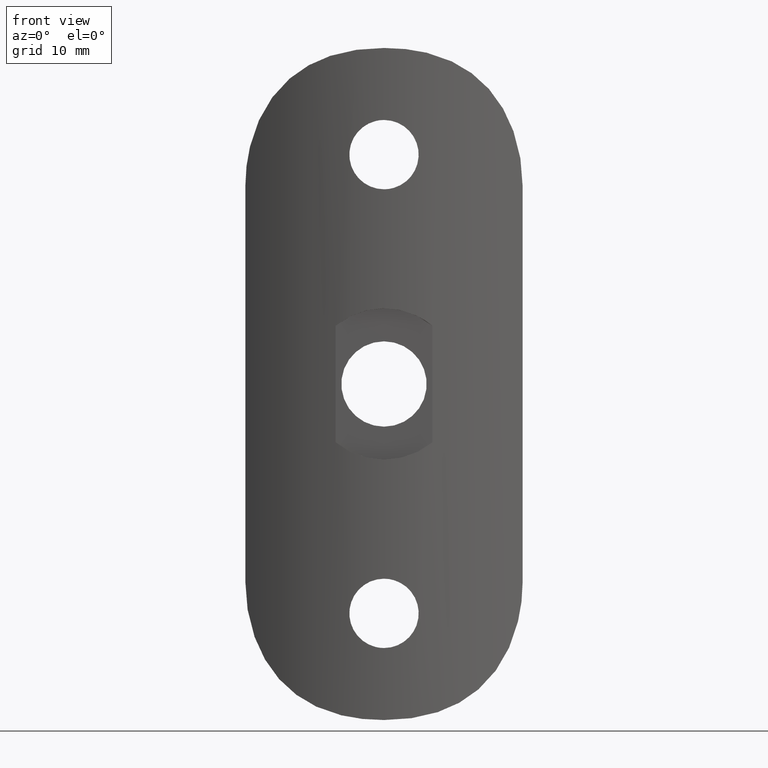
[diagram: clean part render]
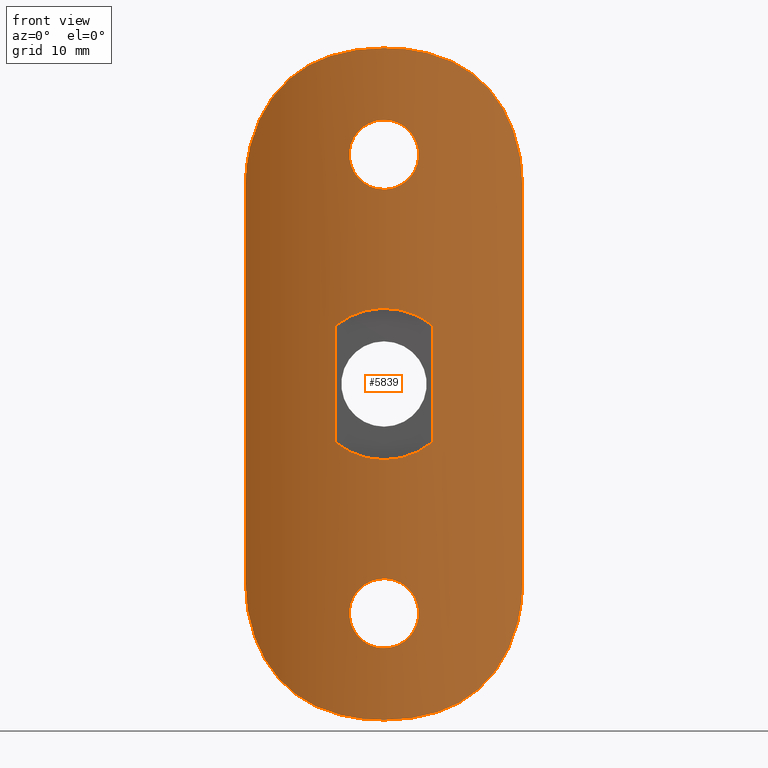
[diagram: same view with one face highlighted and labeled with its STEP entity id]
A machine part, front view. The second image highlights one B-rep face of the part: STEP entity #5839.
In plain terms, the highlighted cylindrical surface (partial cylindrical patch) has radius 20.85 mm, axis along (-0, -0, -1).
Its self-contained STEP definition (entity closure, byte-faithful):
#5 = CARTESIAN_POINT ( 'NONE',  ( 0.8994894225556422400, -4.000000000000002700, -31.49999999999999300 ) ) ;
#105 = CARTESIAN_POINT ( 'NONE',  ( -4.385795527101139500, -3.538186985999252100, 30.96376055406732400 ) ) ;
#164 = CARTESIAN_POINT ( 'NONE',  ( -12.92800348958243200, 0.4908389687051674700, -20.28524322672850400 ) ) ;
#182 = DIRECTION ( 'NONE',  ( -0.0000000000000000000, -0.0000000000000000000, -1.000000000000000000 ) ) ;
#185 = CARTESIAN_POINT ( 'NONE',  ( -3.229192406513820700, -3.748460063484965400, -21.92399563171616000 ) ) ;
#217 = CARTESIAN_POINT ( 'NONE',  ( -8.233914946018360900, -2.308684805869031000, 29.13305792003740900 ) ) ;
#234 = CARTESIAN_POINT ( 'NONE',  ( -2.449119810150480100, -3.856205077523528100, -23.64687108957696900 ) ) ;
#384 = CARTESIAN_POINT ( 'NONE',  ( 0.8995211615377171100, -4.000000000000000000, 31.49999999999999300 ) ) ;
#387 = CARTESIAN_POINT ( 'NONE',  ( -0.8435205793629856300, -3.983990058228274600, -18.35407508419675400 ) ) ;
#417 = CARTESIAN_POINT ( 'NONE',  ( 2.810857946267505200, -3.813365171792722800, -6.532992151309613000 ) ) ;
#429 = CARTESIAN_POINT ( 'NONE',  ( 2.448240329348332800, -3.856310303687668500, 23.64788784674723800 ) ) ;
#435 = VERTEX_POINT ( 'NONE', #8460 ) ;
#485 = CARTESIAN_POINT ( 'NONE',  ( -0.4233875294903806100, -3.996760221051988800, 18.27058619196105800 ) ) ;
#512 = CARTESIAN_POINT ( 'NONE',  ( 3.084215943911794000, -3.770788221992580800, -20.45331265347945000 ) ) ;
#515 = EDGE_CURVE ( 'NONE', #2177, #14832, #12810, .T. ) ;
#544 = CARTESIAN_POINT ( 'NONE',  ( 11.84133742178742400, -0.3148745535422774500, 24.52201016392537600 ) ) ;
#546 = CARTESIAN_POINT ( 'NONE',  ( -2.821682081450909200, -3.808527132807963100, 23.12657407540844500 ) ) ;
#566 = CARTESIAN_POINT ( 'NONE',  ( 2.148963806582265600, -3.889506302244738500, -23.94729595072838900 ) ) ;
#596 = CARTESIAN_POINT ( 'NONE',  ( -2.146754771307998000, -3.889736771875800200, 19.05075325140589000 ) ) ;
#616 = CARTESIAN_POINT ( 'NONE',  ( 4.538722287164086200, -3.500000000000000000, -5.459853477887480500 ) ) ;
#802 = CARTESIAN_POINT ( 'NONE',  ( -1.630940969460388900, -3.937077785470604100, -6.913221009446353100 ) ) ;
#818 = CARTESIAN_POINT ( 'NONE',  ( 2.028323730318318100, -3.902072609321373800, 6.807241558953992700 ) ) ;
#849 = B_SPLINE_CURVE_WITH_KNOTS ( 'NONE', 3,
 ( #15299, #6578, #5247, #10174, #417, #11436, #15201, #3007, #6684, #11547, #1550, #4242 ),
 .UNSPECIFIED., .F., .F.,
 ( 4, 2, 2, 2, 2, 4 ),
 ( 0.0000000000000000000, 0.001233224127721128200, 0.002466448255442256300, 0.003699672383163384500, 0.004316284447023948300, 0.004932896510884512600 ),
 .UNSPECIFIED. ) ;
#933 = CARTESIAN_POINT ( 'NONE',  ( 0.8219664710794234400, -3.987728141361922300, 7.064196573403583200 ) ) ;
#1048 = CARTESIAN_POINT ( 'NONE',  ( 10.81994887173728900, -0.9746651396309005100, -26.38466664456145600 ) ) ;
#1058 = CARTESIAN_POINT ( 'NONE',  ( 12.92797526336123500, 0.4908244495508125600, -20.28429128531304600 ) ) ;
#1089 = CARTESIAN_POINT ( 'NONE',  ( 4.808879816216538000, -3.442244404435218300, -30.84088086085275300 ) ) ;
#1151 = EDGE_LOOP ( 'NONE', ( #15118, #13484, #2273, #15258, #11315, #2850 ) ) ;
#1190 = CARTESIAN_POINT ( 'NONE',  ( -11.84133742178742700, -0.3148745535422760600, -24.52201016392537600 ) ) ;
#1353 = CARTESIAN_POINT ( 'NONE',  ( -9.204107398954676000, -1.861343022048288900, -28.32044484061892200 ) ) ;
#1402 = CARTESIAN_POINT ( 'NONE',  ( -13.00000000000000400, 0.5490030979697462200, -18.50000000000000400 ) ) ;
#1422 = CARTESIAN_POINT ( 'NONE',  ( -2.821682081450902900, -3.808527132807960000, -23.12657407540845300 ) ) ;
#1451 = CARTESIAN_POINT ( 'NONE',  ( -12.40799003955487700, 0.09343085567044492900, 22.86586192898707600 ) ) ;
#1466 = CARTESIAN_POINT ( 'NONE',  ( -1.986851713944304300, -3.905884541441842800, -24.08083014807419900 ) ) ;
#1493 = CARTESIAN_POINT ( 'NONE',  ( 4.538722287164086200, -3.499999999999999600, 31.50000000000000000 ) ) ;
#1550 = CARTESIAN_POINT ( 'NONE',  ( 0.2075825184928276100, -4.000000000000000000, -7.100000000000003200 ) ) ;
#1558 = CARTESIAN_POINT ( 'NONE',  ( -7.063075658817594100E-015, -4.000000000000000000, 31.50000000000000000 ) ) ;
#1573 = CARTESIAN_POINT ( 'NONE',  ( -0.4233875294903793300, -3.996760221051987900, -18.27058619196106200 ) ) ;
#1605 = EDGE_CURVE ( 'NONE', #15633, #10254, #14683, .T. ) ;
#1616 = CARTESIAN_POINT ( 'NONE',  ( 3.084215943911796200, -3.770788221992579900, 20.45331265347945000 ) ) ;
#1623 = CARTESIAN_POINT ( 'NONE',  ( 10.81989783616873200, -0.9746932854559102700, 26.38472191610670900 ) ) ;
#1624 = CARTESIAN_POINT ( 'NONE',  ( -1.052663593333552000, -3.974329779009402300, 24.58207343110227300 ) ) ;
#1667 = CARTESIAN_POINT ( 'NONE',  ( 3.145678452917227000, -3.761380209386669300, 22.34438909834230500 ) ) ;
#1679 = CARTESIAN_POINT ( 'NONE',  ( -1.983345368258381700, -3.906216068258572700, 18.91653155011069000 ) ) ;
#1750 = CARTESIAN_POINT ( 'NONE',  ( 2.448240329348330100, -3.856310303687669800, -23.64788784674724200 ) ) ;
#1781 = CARTESIAN_POINT ( 'NONE',  ( 8.240228733257881200, -2.305941394386744800, 29.12830322085717700 ) ) ;
#1783 = CARTESIAN_POINT ( 'NONE',  ( -3.249862481740943800, -3.745166759921350100, 21.28316636938445300 ) ) ;
#2169 = CARTESIAN_POINT ( 'NONE',  ( 2.226842109273686100, -3.881655761852518700, 6.744883439174472500 ) ) ;
#2177 = VERTEX_POINT ( 'NONE', #14851 ) ;
#2207 = CARTESIAN_POINT ( 'NONE',  ( 2.449569028166926500, -3.856166097471422000, -19.35338486506630700 ) ) ;
#2273 = ORIENTED_EDGE ( 'NONE', *, *, #6615, .T. ) ;
#2276 = CARTESIAN_POINT ( 'NONE',  ( 0.4124163941533269300, -4.000050753280903300, 7.100149043094025300 ) ) ;
#2315 = FACE_BOUND ( 'NONE', #2922, .T. ) ;
#2325 = CARTESIAN_POINT ( 'NONE',  ( 7.884269990551416600, -2.455700170826964300, -29.38083181686783600 ) ) ;
#2415 = CARTESIAN_POINT ( 'NONE',  ( -9.787760135149502700, -1.562759223892152800, -27.72325182864246800 ) ) ;
#2427 = EDGE_CURVE ( 'NONE', #14040, #4746, #6798, .T. ) ;
#2538 = CARTESIAN_POINT ( 'NONE',  ( -3.527997405714749400, -3.703992616044535800, -31.16886343233148100 ) ) ;
#2548 = CARTESIAN_POINT ( 'NONE',  ( 3.527898760406110500, -3.704009373305601200, -31.16888347598757400 ) ) ;
#2594 = CARTESIAN_POINT ( 'NONE',  ( -8.891556378372593300, -2.012470251775695800, 28.60455263522121400 ) ) ;
#2606 = CARTESIAN_POINT ( 'NONE',  ( 12.99999999999999800, 0.5490030979697440000, 31.50000000000000000 ) ) ;
#2640 = CARTESIAN_POINT ( 'NONE',  ( -6.807018096995721900, -2.872800438625863400, -30.05225808729959900 ) ) ;
#2644 = CARTESIAN_POINT ( 'NONE',  ( -9.786876122053366000, -1.563244096240058200, 27.72428910285795900 ) ) ;
#2663 = CARTESIAN_POINT ( 'NONE',  ( -0.4274974284578662000, -3.996674961407405300, -24.72886648614967700 ) ) ;
#2720 = CARTESIAN_POINT ( 'NONE',  ( -1.052663593333551500, -3.974329779009402300, -24.58207343110227300 ) ) ;
#2755 = CARTESIAN_POINT ( 'NONE',  ( -13.00000000000000000, 0.5490030979697394500, 19.40065990040951500 ) ) ;
#2771 = CARTESIAN_POINT ( 'NONE',  ( -0.2122267809761610200, -4.000000000000000900, -18.25000000000000400 ) ) ;
#2806 = CARTESIAN_POINT ( 'NONE',  ( 0.8423731606948997600, -3.984015016978477200, 24.64608558698269300 ) ) ;
#2814 = CARTESIAN_POINT ( 'NONE',  ( -4.238000013752025800E-016, -4.000000000000000000, -24.74999999999999600 ) ) ;
#2841 = CARTESIAN_POINT ( 'NONE',  ( 2.822669829806244500E-018, -4.000000000000000900, -7.100000000000000500 ) ) ;
#2844 = ORIENTED_EDGE ( 'NONE', *, *, #7858, .T. ) ;
#2850 = ORIENTED_EDGE ( 'NONE', *, *, #12269, .T. ) ;
#2857 = VECTOR ( 'NONE', #10748, 1000.000000000000000 ) ;
#2871 = CARTESIAN_POINT ( 'NONE',  ( 2.921072285740919000, -3.794530306752535300, 20.05941710008681200 ) ) ;
#2882 = CARTESIAN_POINT ( 'NONE',  ( -3.082936625438859900, -3.770980503715080500, 20.44954956054234400 ) ) ;
#2914 = CARTESIAN_POINT ( 'NONE',  ( -13.00000000000000400, 0.5490030979697462200, -18.50000000000000400 ) ) ;
#2922 = EDGE_LOOP ( 'NONE', ( #5518, #12665, #15202, #9882, #3733 ) ) ;
#2929 = CARTESIAN_POINT ( 'NONE',  ( -2.446498271656226900, -3.856517901897796200, 19.35011351685360000 ) ) ;
#2977 = CARTESIAN_POINT ( 'NONE',  ( 9.204107398954668900, -1.861343022048288500, 28.32044484061892600 ) ) ;
#2997 = CARTESIAN_POINT ( 'NONE',  ( 2.819403693953583800, -3.808836470937247800, -19.86959481664365200 ) ) ;
#3007 = CARTESIAN_POINT ( 'NONE',  ( 1.031683805773586400, -3.975442028726522200, -7.027635544497687000 ) ) ;
#3029 = CARTESIAN_POINT ( 'NONE',  ( -1.443427539235932100, -3.950897296141890400, 24.41955376974149800 ) ) ;
#3076 = CARTESIAN_POINT ( 'NONE',  ( 0.4279247815464026200, -3.996652876120847500, 18.27128023418729100 ) ) ;
#3408 = CARTESIAN_POINT ( 'NONE',  ( -4.538722287164089800, -3.500000000000000000, 5.459853477887477900 ) ) ;
#3487 = VECTOR ( 'NONE', #5169, 1000.000000000000000 ) ;
#3517 = CARTESIAN_POINT ( 'NONE',  ( -1.639021615574721900, -3.939409602372875100, 6.920373051910686100 ) ) ;
#3535 = CARTESIAN_POINT ( 'NONE',  ( 12.71381069657484100, 0.3245745940752610100, -21.58540070414690200 ) ) ;
#3554 = CARTESIAN_POINT ( 'NONE',  ( 1.047746819308112500, -3.974589590997900300, -18.41616539157603300 ) ) ;
#3564 = CARTESIAN_POINT ( 'NONE',  ( 8.233914946018359200, -2.308684805869031500, -29.13305792003741200 ) ) ;
#3647 = CARTESIAN_POINT ( 'NONE',  ( 12.62452858097529800, 0.2559617808524961000, -22.01501381968779100 ) ) ;
#3698 = LINE ( 'NONE', #2606, #11003 ) ;
#3703 = B_SPLINE_CURVE_WITH_KNOTS ( 'NONE', 3,
 ( #6167, #5, #9911, #8665, #2548, #12357, #1089, #6052, #9694, #2325, #3564, #12149, #13367, #9407, #6249, #4754, #1048, #9652, #9644, #10894, #4714, #3647, #3535, #1058, #14487, #8305 ),
 .UNSPECIFIED., .F., .F.,
 ( 4, 2, 2, 2, 2, 2, 2, 2, 2, 2, 2, 2, 4 ),
 ( 8.723556104670855300E-020, 0.002665498496543526000, 0.003998247744815289200, 0.005330996993087051100, 0.007996495489630571500, 0.009329244737902331700, 0.01066199398617409200, 0.01199474323444585200, 0.01332749248271761400, 0.01599299097926113600, 0.01732574022753290100, 0.01865848947580466700, 0.02132398797234820800 ),
 .UNSPECIFIED. ) ;
#3733 = ORIENTED_EDGE ( 'NONE', *, *, #8972, .T. ) ;
#3735 = ORIENTED_EDGE ( 'NONE', *, *, #6964, .F. ) ;
#3765 = CARTESIAN_POINT ( 'NONE',  ( -7.063075658817594100E-015, -4.000000000000000000, 31.50000000000000000 ) ) ;
#3770 = CARTESIAN_POINT ( 'NONE',  ( -12.40541481729406700, 0.09151756226843038600, -22.87504130031248900 ) ) ;
#3829 = CARTESIAN_POINT ( 'NONE',  ( -10.81989783616873500, -0.9746932854559126100, -26.38472191610670600 ) ) ;
#3848 = CARTESIAN_POINT ( 'NONE',  ( -1.048234291274113800, -3.974555081416437200, -18.41641084714279900 ) ) ;
#3919 = EDGE_CURVE ( 'NONE', #12608, #8193, #4466, .T. ) ;
#3933 = CARTESIAN_POINT ( 'NONE',  ( -12.71381069657483900, 0.3245745940752577400, 21.58540070414690600 ) ) ;
#3940 = CARTESIAN_POINT ( 'NONE',  ( 1.982061062768914800, -3.906332346841657100, 24.08437779201478800 ) ) ;
#3941 = EDGE_CURVE ( 'NONE', #10145, #12209, #3698, .T. ) ;
#3950 = CARTESIAN_POINT ( 'NONE',  ( -3.250136198457129800, -3.745123566288098200, -21.71269147860681100 ) ) ;
#3984 = CARTESIAN_POINT ( 'NONE',  ( -13.00000000000000400, 0.5490030979697462200, 18.50000000000000400 ) ) ;
#3993 = CARTESIAN_POINT ( 'NONE',  ( 3.249919866893105500, -3.745157704307994400, 21.71356065236884800 ) ) ;
#4003 = CARTESIAN_POINT ( 'NONE',  ( -2.819342144774540100, -3.808846335284414400, -19.86943644389238600 ) ) ;
#4054 = CARTESIAN_POINT ( 'NONE',  ( 4.385909432599470700, -3.538162658861102800, 30.96372977599603300 ) ) ;
#4057 = CARTESIAN_POINT ( 'NONE',  ( -0.8473534503845432400, -3.983833135744128600, -24.64488870500055700 ) ) ;
#4106 = EDGE_CURVE ( 'NONE', #10145, #14383, #10089, .T. ) ;
#4124 = DIRECTION ( 'NONE',  ( -0.0000000000000000000, -0.0000000000000000000, -1.000000000000000000 ) ) ;
#4145 = CARTESIAN_POINT ( 'NONE',  ( 12.27726269231184200, -0.002989152605375554900, 23.29704111035331200 ) ) ;
#4213 = CARTESIAN_POINT ( 'NONE',  ( -1.048234291274114500, -3.974555081416436300, 18.41641084714279200 ) ) ;
#4232 = CARTESIAN_POINT ( 'NONE',  ( 2.582649714299361900, -3.839774590044871900, -23.48445838258861000 ) ) ;
#4242 = CARTESIAN_POINT ( 'NONE',  ( 2.822669829806244500E-018, -4.000000000000000900, -7.100000000000000500 ) ) ;
#4262 = CARTESIAN_POINT ( 'NONE',  ( -0.8473534503845404600, -3.983833135744128600, 24.64488870500056400 ) ) ;
#4314 = CARTESIAN_POINT ( 'NONE',  ( -0.2122267809761606800, -3.999999999999999100, 18.25000000000000000 ) ) ;
#4466 = LINE ( 'NONE', #14903, #3487 ) ;
#4471 = CARTESIAN_POINT ( 'NONE',  ( -4.223150829810880000, -3.570382860279210500, -5.722184914524531200 ) ) ;
#4536 = B_SPLINE_CURVE_WITH_KNOTS ( 'NONE', 3,
 ( #1558, #11290, #14944, #13738, #5054, #105, #10118, #14839, #13642, #12562, #217, #2594, #8823, #2644, #7550, #14999, #12352, #8715, #6267, #6422, #1451, #10069, #3933, #10019, #2755, #3984 ),
 .UNSPECIFIED., .F., .F.,
 ( 4, 2, 2, 2, 2, 2, 2, 2, 2, 2, 2, 2, 4 ),
 ( 1.359853819285665600E-017, 0.002665498496543532100, 0.003998247744815293600, 0.005330996993087053700, 0.007996495489630575000, 0.009329244737902336900, 0.01066199398617409900, 0.01199474323444586100, 0.01332749248271762100, 0.01599299097926114600, 0.01732574022753291900, 0.01865848947580468400, 0.02132398797234821100 ),
 .UNSPECIFIED. ) ;
#4651 = CARTESIAN_POINT ( 'NONE',  ( 3.176552494716632100, -3.759725969248737700, 6.362837176073457900 ) ) ;
#4714 = CARTESIAN_POINT ( 'NONE',  ( 12.40799003955487700, 0.09343085567045064700, -22.86586192898708300 ) ) ;
#4746 = VERTEX_POINT ( 'NONE', #15282 ) ;
#4754 = CARTESIAN_POINT ( 'NONE',  ( 10.57815397570245400, -1.119791496786739700, -26.73848721398387000 ) ) ;
#4978 = CARTESIAN_POINT ( 'NONE',  ( -13.00000000000000400, 0.5490030979697462200, 18.50000000000000400 ) ) ;
#5018 = EDGE_CURVE ( 'NONE', #435, #5875, #6982, .T. ) ;
#5048 = CARTESIAN_POINT ( 'NONE',  ( -8.240228733257890100, -2.305941394386746200, -29.12830322085717700 ) ) ;
#5054 = CARTESIAN_POINT ( 'NONE',  ( -3.527898760406122900, -3.704009373305601600, 31.16888347598757000 ) ) ;
#5066 = CARTESIAN_POINT ( 'NONE',  ( -1.983345368258379700, -3.906216068258571800, -18.91653155011069400 ) ) ;
#5097 = CARTESIAN_POINT ( 'NONE',  ( -10.57803559982154900, -1.119856182949845000, -26.73862566697978200 ) ) ;
#5107 = CARTESIAN_POINT ( 'NONE',  ( 1.631235879013231700, -3.936840313706381900, 18.68107524109323200 ) ) ;
#5169 = DIRECTION ( 'NONE',  ( -0.0000000000000000000, -0.0000000000000000000, -1.000000000000000000 ) ) ;
#5247 = CARTESIAN_POINT ( 'NONE',  ( 3.888539735692050100, -3.637306982640372800, -5.954373804182458800 ) ) ;
#5256 = CARTESIAN_POINT ( 'NONE',  ( 1.048981491134561400, -3.974528303007414100, 24.58342433557345100 ) ) ;
#5262 = CARTESIAN_POINT ( 'NONE',  ( 8.895011069985001100, -2.010812239838260400, 28.60145222086470400 ) ) ;
#5306 = CARTESIAN_POINT ( 'NONE',  ( 3.229232020519832200, -3.748454981446875100, 21.92467215142561100 ) ) ;
#5414 = CARTESIAN_POINT ( 'NONE',  ( 0.2122791489420437800, -3.999999999999998200, 18.25000000000000000 ) ) ;
#5420 = CARTESIAN_POINT ( 'NONE',  ( 4.809102330739446700, -3.442202044215858500, 30.84083079719426100 ) ) ;
#5422 = CARTESIAN_POINT ( 'NONE',  ( -2.919308295932453200, -3.794780799135886600, 20.05584507911060000 ) ) ;
#5435 = EDGE_CURVE ( 'NONE', #14832, #11517, #6902, .T. ) ;
#5442 = CARTESIAN_POINT ( 'NONE',  ( 3.083126816990124500, -3.770949099061572200, -22.54958031974102900 ) ) ;
#5464 = CARTESIAN_POINT ( 'NONE',  ( 1.047746819308114100, -3.974589590997900300, 18.41616539157603700 ) ) ;
#5470 = CARTESIAN_POINT ( 'NONE',  ( -4.677810049403507700E-016, -4.000000000000000000, 24.74999999999999600 ) ) ;
#5518 = ORIENTED_EDGE ( 'NONE', *, *, #515, .T. ) ;
#5524 = LINE ( 'NONE', #12077, #2857 ) ;
#5677 = CARTESIAN_POINT ( 'NONE',  ( 12.99999999999999800, 0.5490030979697440000, 18.50000000000000400 ) ) ;
#5749 = CARTESIAN_POINT ( 'NONE',  ( -3.888882886305548700, -3.637238336350184100, 5.954135362296183200 ) ) ;
#5800 = CARTESIAN_POINT ( 'NONE',  ( -4.223028283571499000, -3.570410192139054800, 5.722286786003313500 ) ) ;
#5830 = CARTESIAN_POINT ( 'NONE',  ( -3.884283435280881900, -3.638130447435006700, -5.957210367986299100 ) ) ;
#5839 = ADVANCED_FACE ( 'NONE', ( #9431, #2315, #15787, #12498 ), #5944, .T. ) ;
#5846 = CARTESIAN_POINT ( 'NONE',  ( 4.538722287164086200, -3.500000000000000000, 5.459853477887480500 ) ) ;
#5875 = VERTEX_POINT ( 'NONE', #8092 ) ;
#5944 = CYLINDRICAL_SURFACE ( 'NONE', #9957, 20.85000000000000100 ) ;
#5997 = CARTESIAN_POINT ( 'NONE',  ( 2.146775501657099300, -3.889745847654800100, -19.05057151425766900 ) ) ;
#6052 = CARTESIAN_POINT ( 'NONE',  ( 6.034341321828052600, -3.125516439788667900, -30.41530755885265300 ) ) ;
#6167 = CARTESIAN_POINT ( 'NONE',  ( -5.921709659023161200E-015, -4.000000000000000000, -31.50000000000000000 ) ) ;
#6205 = CARTESIAN_POINT ( 'NONE',  ( -5.921709659023161200E-015, -4.000000000000000000, -31.50000000000000000 ) ) ;
#6249 = CARTESIAN_POINT ( 'NONE',  ( 10.06190585867899000, -1.413865923257871000, -27.40758551223914100 ) ) ;
#6261 = CARTESIAN_POINT ( 'NONE',  ( -4.809102330739460000, -3.442202044215851900, -30.84083079719423600 ) ) ;
#6267 = CARTESIAN_POINT ( 'NONE',  ( -11.84275810155620900, -0.3139149183250962100, 24.51925199788497900 ) ) ;
#6320 = CARTESIAN_POINT ( 'NONE',  ( -12.27726269231184400, -0.002989152605374719200, -23.29704111035330900 ) ) ;
#6333 = CARTESIAN_POINT ( 'NONE',  ( 1.441024360507269000, -3.951075785239884600, 18.57916825511836500 ) ) ;
#6341 = CARTESIAN_POINT ( 'NONE',  ( -2.919308295932454600, -3.794780799135884800, -20.05584507911060000 ) ) ;
#6356 = CARTESIAN_POINT ( 'NONE',  ( 1.048981491134561000, -3.974528303007413200, -24.58342433557345400 ) ) ;
#6385 = CARTESIAN_POINT ( 'NONE',  ( 1.442440830534658800, -3.950978478473222900, 24.42014250548770300 ) ) ;
#6393 = CARTESIAN_POINT ( 'NONE',  ( -0.2150349722838895700, -4.000000000000000000, -24.74999999999998900 ) ) ;
#6422 = CARTESIAN_POINT ( 'NONE',  ( -12.27984362872066800, -0.001113884489595342900, 23.28916457201297500 ) ) ;
#6459 = CARTESIAN_POINT ( 'NONE',  ( -4.238000013752025800E-016, -4.000000000000000000, -24.74999999999999600 ) ) ;
#6488 = CARTESIAN_POINT ( 'NONE',  ( 3.083126816990126300, -3.770949099061571700, 22.54958031974103600 ) ) ;
#6540 = CARTESIAN_POINT ( 'NONE',  ( 3.228858312758159200, -3.748513142941286300, 21.07315900897500800 ) ) ;
#6546 = CARTESIAN_POINT ( 'NONE',  ( 12.62329194268756400, 0.2550142833874141100, 22.02079613902925100 ) ) ;
#6566 = CARTESIAN_POINT ( 'NONE',  ( 0.2150880331843095200, -4.000000000000000000, -24.75000000000000000 ) ) ;
#6578 = CARTESIAN_POINT ( 'NONE',  ( 4.222866115583515000, -3.570446360957791200, -5.722421594650522400 ) ) ;
#6614 = CARTESIAN_POINT ( 'NONE',  ( 1.628999625832026100, -3.937021402022201900, -24.32027212294185900 ) ) ;
#6615 = EDGE_CURVE ( 'NONE', #15589, #12209, #3703, .T. ) ;
#6645 = CARTESIAN_POINT ( 'NONE',  ( 10.06231539357396800, -1.413635380373674500, 27.40706968573489300 ) ) ;
#6648 = CARTESIAN_POINT ( 'NONE',  ( -3.229192406513823300, -3.748460063484965400, 21.92399563171616000 ) ) ;
#6670 = CARTESIAN_POINT ( 'NONE',  ( 2.820230869257575700, -3.808730599379132700, -23.12924904882078200 ) ) ;
#6684 = CARTESIAN_POINT ( 'NONE',  ( 0.8278861521290455900, -3.984573965182059300, -7.054591563308950000 ) ) ;
#6753 = CARTESIAN_POINT ( 'NONE',  ( -2.583673285978473000, -3.839641233852200600, 19.51705774387416900 ) ) ;
#6798 = B_SPLINE_CURVE_WITH_KNOTS ( 'NONE', 3,
 ( #12018, #6955, #8212, #7111, #802, #11925, #10804, #13146, #13254, #5830, #4471, #8311 ),
 .UNSPECIFIED., .F., .F.,
 ( 4, 2, 2, 2, 2, 4 ),
 ( 0.004932896510884512600, 0.006164854306056113600, 0.006780833203641913200, 0.007396812101227713700, 0.008628769896399313800, 0.009860727691570914800 ),
 .UNSPECIFIED. ) ;
#6902 = LINE ( 'NONE', #1493, #7090 ) ;
#6955 = CARTESIAN_POINT ( 'NONE',  ( -0.4147387259948606100, -3.999999999999999100, -7.100000000000004100 ) ) ;
#6964 = EDGE_CURVE ( 'NONE', #10254, #15633, #13920, .T. ) ;
#6982 = B_SPLINE_CURVE_WITH_KNOTS ( 'NONE', 3,
 ( #8928, #10186, #11248, #2806, #5256, #6385, #14954, #3940, #10232, #429, #11355, #11445, #13852, #6488, #1667, #5306, #3993, #15099, #6540, #7724, #1616, #2871, #15158, #9046, #13700, #10282, #12470, #5107, #6333, #5464, #9095, #3076, #5414, #15425 ),
 .UNSPECIFIED., .F., .F.,
 ( 4, 2, 2, 2, 2, 2, 2, 2, 2, 2, 2, 2, 2, 2, 2, 2, 4 ),
 ( 4.544903105691113400E-019, 0.0006360313552282966600, 0.001272062710456592900, 0.001908094065684889100, 0.002544125420913185300, 0.003180156776141481300, 0.003816188131369777800, 0.004452219486598074600, 0.005088250841826370700, 0.005724282197054666700, 0.006360313552282962700, 0.006996344907511259500, 0.007632376262739555600, 0.008268407617967850700, 0.008904438973196147600, 0.009540470328424442700, 0.01017650168365274000 ),
 .UNSPECIFIED. ) ;
#7028 = CARTESIAN_POINT ( 'NONE',  ( -2.811839717540599400, -3.813227542871065400, 6.532556860245981600 ) ) ;
#7090 = VECTOR ( 'NONE', #4124, 1000.000000000000000 ) ;
#7111 = CARTESIAN_POINT ( 'NONE',  ( -1.430205315803978500, -3.951874399192472500, -6.957484860414611600 ) ) ;
#7132 = CARTESIAN_POINT ( 'NONE',  ( 1.629294336257409300, -3.937207958342034100, 6.913612280332355200 ) ) ;
#7519 = CARTESIAN_POINT ( 'NONE',  ( -3.145552963250630300, -3.761398779500238800, -20.65567800194741100 ) ) ;
#7550 = CARTESIAN_POINT ( 'NONE',  ( -10.06190585867899200, -1.413865923257870100, 27.40758551223913400 ) ) ;
#7567 = CARTESIAN_POINT ( 'NONE',  ( -2.583673285978474800, -3.839641233852204100, -19.51705774387417600 ) ) ;
#7622 = CARTESIAN_POINT ( 'NONE',  ( 3.980101055418286300E-016, -3.999999999999999100, -18.25000000000000000 ) ) ;
#7724 = CARTESIAN_POINT ( 'NONE',  ( 3.145711488837713800, -3.761374746309057700, 20.65606963291923400 ) ) ;
#7731 = CARTESIAN_POINT ( 'NONE',  ( 1.786285579006134300, -3.941963666907203600, 31.44331845367619100 ) ) ;
#7858 = EDGE_CURVE ( 'NONE', #5875, #435, #12128, .T. ) ;
#7860 = CARTESIAN_POINT ( 'NONE',  ( 3.228858312758157400, -3.748513142941283200, -21.07315900897500400 ) ) ;
#7893 = CARTESIAN_POINT ( 'NONE',  ( -2.921349281780648300, -3.794490413398951200, 22.93996045745104000 ) ) ;
#7912 = CARTESIAN_POINT ( 'NONE',  ( 1.982061062768914800, -3.906332346841657100, -24.08437779201478400 ) ) ;
#7994 = CARTESIAN_POINT ( 'NONE',  ( -1.631418227057860100, -3.936841929434381700, 24.31899601894638300 ) ) ;
#8092 = CARTESIAN_POINT ( 'NONE',  ( 3.980101055473506600E-016, -4.000000000000000000, 18.25000000000000000 ) ) ;
#8163 = CARTESIAN_POINT ( 'NONE',  ( -2.035053503873161000, -3.904131451881522900, 6.814638579254163300 ) ) ;
#8193 = VERTEX_POINT ( 'NONE', #2914 ) ;
#8212 = CARTESIAN_POINT ( 'NONE',  ( -0.8240596027089814900, -3.987641153252356100, -7.063940620092507700 ) ) ;
#8283 = CARTESIAN_POINT ( 'NONE',  ( -1.033665005549260900, -3.975342674832303300, 7.027341276385120000 ) ) ;
#8305 = CARTESIAN_POINT ( 'NONE',  ( 12.99999999999999800, 0.5490030979697440000, -18.50000000000000400 ) ) ;
#8311 = CARTESIAN_POINT ( 'NONE',  ( -4.538722287164089800, -3.500000000000000000, -5.459853477887477900 ) ) ;
#8442 = B_SPLINE_CURVE_WITH_KNOTS ( 'NONE', 3,
 ( #1402, #10015, #164, #11236, #12345, #3770, #6320, #1190, #8538, #3829, #5097, #8758, #2415, #1353, #9793, #5048, #14940, #2640, #14781, #6261, #8710, #2538, #14884, #11136, #13689, #11022 ),
 .UNSPECIFIED., .F., .F.,
 ( 4, 2, 2, 2, 2, 2, 2, 2, 2, 2, 2, 2, 4 ),
 ( 1.084202172485504400E-019, 0.002663334618371635900, 0.003995001927557453300, 0.005326669236743270800, 0.007990003855114896300, 0.009321671164300708600, 0.01065333847348652300, 0.01198500578267233700, 0.01331667309185815100, 0.01598000771022977200, 0.01731167501941558200, 0.01864334232860139600, 0.02130667694697301700 ),
 .UNSPECIFIED. ) ;
#8460 = CARTESIAN_POINT ( 'NONE',  ( -4.677810049403507700E-016, -4.000000000000000000, 24.74999999999999600 ) ) ;
#8538 = CARTESIAN_POINT ( 'NONE',  ( -11.48050098975743400, -0.5623552871804882200, -25.29414705154740900 ) ) ;
#8665 = CARTESIAN_POINT ( 'NONE',  ( 3.095138953090891000, -3.773678690184444100, -31.25096211381765000 ) ) ;
#8710 = CARTESIAN_POINT ( 'NONE',  ( -4.385909432599478700, -3.538162658861100200, -30.96372977599601800 ) ) ;
#8715 = CARTESIAN_POINT ( 'NONE',  ( -11.48104205251211600, -0.5620101394519403400, 25.29319581707268900 ) ) ;
#8758 = CARTESIAN_POINT ( 'NONE',  ( -10.06231539357397000, -1.413635380373678500, -27.40706968573488200 ) ) ;
#8823 = CARTESIAN_POINT ( 'NONE',  ( -9.201700468806528500, -1.862541539259263000, 28.32277410812674000 ) ) ;
#8837 = CARTESIAN_POINT ( 'NONE',  ( -3.082936625438861300, -3.770980503715079600, -20.44954956054235500 ) ) ;
#8928 = CARTESIAN_POINT ( 'NONE',  ( -4.677810049403507700E-016, -4.000000000000000000, 24.74999999999999600 ) ) ;
#8972 = EDGE_CURVE ( 'NONE', #4746, #2177, #5524, .T. ) ;
#8983 = CARTESIAN_POINT ( 'NONE',  ( -2.063529856563290200E-015, 16.85000000000000100, 31.50000000000000000 ) ) ;
#9046 = CARTESIAN_POINT ( 'NONE',  ( 2.584240755819436700, -3.839568899287580300, 19.51784007523203400 ) ) ;
#9049 = ORIENTED_EDGE ( 'NONE', *, *, #1605, .F. ) ;
#9056 = CARTESIAN_POINT ( 'NONE',  ( -2.819342144774540600, -3.808846335284412200, 19.86943644389239700 ) ) ;
#9095 = CARTESIAN_POINT ( 'NONE',  ( 0.8451305416391971000, -3.983910101652251800, 18.35460569842192400 ) ) ;
#9101 = CARTESIAN_POINT ( 'NONE',  ( 12.99999999999999800, 0.5490030979697441100, 19.40047370636683900 ) ) ;
#9103 = CARTESIAN_POINT ( 'NONE',  ( -1.439401000619265900, -3.951178193260259900, 18.57845213072969400 ) ) ;
#9122 = CARTESIAN_POINT ( 'NONE',  ( 2.921072285740917300, -3.794530306752537100, -20.05941710008681500 ) ) ;
#9150 = CARTESIAN_POINT ( 'NONE',  ( 12.92800348958243900, 0.4908389687051723500, 20.28524322672850400 ) ) ;
#9152 = CARTESIAN_POINT ( 'NONE',  ( -2.150178831674786700, -3.889379150513410500, 23.94621632558336800 ) ) ;
#9209 = CARTESIAN_POINT ( 'NONE',  ( -2.449119810150481400, -3.856205077523528600, 23.64687108957696500 ) ) ;
#9407 = CARTESIAN_POINT ( 'NONE',  ( 9.786876122053364200, -1.563244096240057800, -27.72428910285797000 ) ) ;
#9424 = CARTESIAN_POINT ( 'NONE',  ( 12.71300006953313400, 0.3239490439889632900, 21.58976064839148600 ) ) ;
#9431 = FACE_BOUND ( 'NONE', #15830, .T. ) ;
#9432 = CARTESIAN_POINT ( 'NONE',  ( 3.883936743251242200, -3.638199668434491100, 5.957450633898349500 ) ) ;
#9535 = CARTESIAN_POINT ( 'NONE',  ( 1.428448061099597500, -3.951996223438805100, 6.957848925031157700 ) ) ;
#9644 = CARTESIAN_POINT ( 'NONE',  ( 11.84275810155620700, -0.3139149183250943800, -24.51925199788498600 ) ) ;
#9652 = CARTESIAN_POINT ( 'NONE',  ( 11.48104205251211600, -0.5620101394519362300, -25.29319581707270400 ) ) ;
#9694 = CARTESIAN_POINT ( 'NONE',  ( 6.803295188096632800, -2.873964207601189100, -30.05386606140803000 ) ) ;
#9793 = CARTESIAN_POINT ( 'NONE',  ( -8.895011069985006500, -2.010812239838260900, -28.60145222086470800 ) ) ;
#9795 = CARTESIAN_POINT ( 'NONE',  ( 0.2122791489420427800, -4.000000000000000900, -18.25000000000000700 ) ) ;
#9882 = ORIENTED_EDGE ( 'NONE', *, *, #2427, .T. ) ;
#9911 = CARTESIAN_POINT ( 'NONE',  ( 1.786227388186490300, -3.941967755297396200, -31.44332252597124700 ) ) ;
#9957 = AXIS2_PLACEMENT_3D ( 'NONE', #8983, #11713, #14227 ) ;
#10015 = CARTESIAN_POINT ( 'NONE',  ( -12.99999999999999800, 0.5490030979697408900, -19.40047370636683900 ) ) ;
#10019 = CARTESIAN_POINT ( 'NONE',  ( -12.92797526336122800, 0.4908244495508090600, 20.28429128531304200 ) ) ;
#10022 = CARTESIAN_POINT ( 'NONE',  ( 12.99999999999999800, 0.5490030979697440000, 18.50000000000000400 ) ) ;
#10033 = CARTESIAN_POINT ( 'NONE',  ( -2.585924615477645200, -3.839360235367611300, -23.48005729074660100 ) ) ;
#10069 = CARTESIAN_POINT ( 'NONE',  ( -12.62452858097529800, 0.2559617808524896100, 22.01501381968778800 ) ) ;
#10084 = CARTESIAN_POINT ( 'NONE',  ( -1.443427539235929900, -3.950897296141889600, -24.41955376974149400 ) ) ;
#10089 = B_SPLINE_CURVE_WITH_KNOTS ( 'NONE', 3,
 ( #5677, #9101, #9150, #9424, #6546, #14031, #4145, #544, #10341, #1623, #12733, #6645, #14292, #2977, #5262, #1781, #10650, #11566, #11407, #5420, #4054, #12629, #13858, #7731, #384, #13153 ),
 .UNSPECIFIED., .F., .F.,
 ( 4, 2, 2, 2, 2, 2, 2, 2, 2, 2, 2, 2, 4 ),
 ( 0.0000000000000000000, 0.002663334618371624100, 0.003995001927557436000, 0.005326669236743247400, 0.007990003855114877200, 0.009321671164300691200, 0.01065333847348650700, 0.01198500578267232100, 0.01331667309185813500, 0.01598000771022976500, 0.01731167501941558200, 0.01864334232860140000, 0.02130667694697303100 ),
 .UNSPECIFIED. ) ;
#10100 = CARTESIAN_POINT ( 'NONE',  ( 0.4265164505764055300, -3.996674986360091400, -24.72885905233831500 ) ) ;
#10112 = CARTESIAN_POINT ( 'NONE',  ( 3.980101055418286300E-016, -3.999999999999999100, -18.25000000000000000 ) ) ;
#10118 = CARTESIAN_POINT ( 'NONE',  ( -4.808879816216545100, -3.442244404435216100, 30.84088086085273900 ) ) ;
#10132 = CARTESIAN_POINT ( 'NONE',  ( -1.628793636270001100, -3.937043936367518700, -18.67953915612858400 ) ) ;
#10145 = VERTEX_POINT ( 'NONE', #10022 ) ;
#10174 = CARTESIAN_POINT ( 'NONE',  ( 3.183394098983716600, -3.758650870145686400, -6.359348291023688500 ) ) ;
#10184 = CARTESIAN_POINT ( 'NONE',  ( -4.238000013752025800E-016, -4.000000000000000000, -24.74999999999999600 ) ) ;
#10186 = CARTESIAN_POINT ( 'NONE',  ( 0.2150880331843097200, -4.000000000000000900, 24.74999999999998900 ) ) ;
#10196 = CARTESIAN_POINT ( 'NONE',  ( -2.921349281780647000, -3.794490413398949900, -22.93996045745103300 ) ) ;
#10232 = CARTESIAN_POINT ( 'NONE',  ( 2.148963806582267800, -3.889506302244737600, 23.94729595072839200 ) ) ;
#10240 = CARTESIAN_POINT ( 'NONE',  ( -0.2150349722838902600, -4.000000000000000900, 24.75000000000000000 ) ) ;
#10254 = VERTEX_POINT ( 'NONE', #10184 ) ;
#10282 = CARTESIAN_POINT ( 'NONE',  ( 2.146775501657101100, -3.889745847654798800, 19.05057151425766900 ) ) ;
#10289 = CARTESIAN_POINT ( 'NONE',  ( -3.228544471174093800, -3.748562175303643800, 21.07118339740451100 ) ) ;
#10341 = CARTESIAN_POINT ( 'NONE',  ( 11.48050098975742900, -0.5623552871804854400, 25.29414705154740900 ) ) ;
#10363 = CARTESIAN_POINT ( 'NONE',  ( 3.250079672897576300, -3.745132486254159100, -21.28888530774794700 ) ) ;
#10395 = CARTESIAN_POINT ( 'NONE',  ( -1.986851713944307800, -3.905884541441843700, 24.08083014807419900 ) ) ;
#10650 = CARTESIAN_POINT ( 'NONE',  ( 7.892155454352772100, -2.452508785466247100, 29.37556239514631100 ) ) ;
#10718 = CARTESIAN_POINT ( 'NONE',  ( 2.806751430463695100, -3.813885211594140000, 6.534620108187478800 ) ) ;
#10748 = DIRECTION ( 'NONE',  ( 0.0000000000000000000, 0.0000000000000000000, 1.000000000000000000 ) ) ;
#10771 = CARTESIAN_POINT ( 'NONE',  ( -3.184137034353814700, -3.758532604246070300, 6.358962915633537900 ) ) ;
#10804 = CARTESIAN_POINT ( 'NONE',  ( -2.228150308295727000, -3.881514112742733100, -6.744448015486405300 ) ) ;
#10812 = CARTESIAN_POINT ( 'NONE',  ( 0.4279247815464040100, -3.996652876120846600, -18.27128023418729400 ) ) ;
#10894 = CARTESIAN_POINT ( 'NONE',  ( 12.27984362872067200, -0.001113884489591990300, -23.28916457201297200 ) ) ;
#10975 = CARTESIAN_POINT ( 'NONE',  ( 1.982955336007555400, -3.906241202489144200, -18.91636778454115100 ) ) ;
#11003 = VECTOR ( 'NONE', #182, 1000.000000000000000 ) ;
#11022 = CARTESIAN_POINT ( 'NONE',  ( -5.921709659023161200E-015, -4.000000000000000000, -31.50000000000000000 ) ) ;
#11136 = CARTESIAN_POINT ( 'NONE',  ( -1.786285579006150500, -3.941963666907203600, -31.44331845367620600 ) ) ;
#11236 = CARTESIAN_POINT ( 'NONE',  ( -12.71300006953313000, 0.3239490439889587400, -21.58976064839148600 ) ) ;
#11248 = CARTESIAN_POINT ( 'NONE',  ( 0.4265164505764051400, -3.996674986360091900, 24.72885905233831500 ) ) ;
#11256 = CARTESIAN_POINT ( 'NONE',  ( -3.084146353678849400, -3.770797931316114000, -22.54680896742068100 ) ) ;
#11290 = CARTESIAN_POINT ( 'NONE',  ( -0.8994894225556405700, -3.999999999999999100, 31.50000000000000700 ) ) ;
#11311 = CARTESIAN_POINT ( 'NONE',  ( -3.228544471174091200, -3.748562175303641600, -21.07118339740451400 ) ) ;
#11315 = ORIENTED_EDGE ( 'NONE', *, *, #4106, .T. ) ;
#11355 = CARTESIAN_POINT ( 'NONE',  ( 2.582649714299361000, -3.839774590044871900, 23.48445838258861000 ) ) ;
#11364 = CARTESIAN_POINT ( 'NONE',  ( -3.146732883946636000, -3.761218128542534800, -22.33995717217593200 ) ) ;
#11407 = CARTESIAN_POINT ( 'NONE',  ( 6.036001017824496300, -3.125057142246896500, 30.41467669571540700 ) ) ;
#11410 = CARTESIAN_POINT ( 'NONE',  ( -1.631418227057856600, -3.936841929434380800, -24.31899601894638300 ) ) ;
#11436 = CARTESIAN_POINT ( 'NONE',  ( 2.033641075329497600, -3.904273935594190900, -6.815072473561881900 ) ) ;
#11445 = CARTESIAN_POINT ( 'NONE',  ( 2.820230869257575300, -3.808730599379131400, 23.12924904882078200 ) ) ;
#11453 = CARTESIAN_POINT ( 'NONE',  ( -3.146732883946636400, -3.761218128542534300, 22.33995717217593200 ) ) ;
#11517 = VERTEX_POINT ( 'NONE', #616 ) ;
#11535 = CARTESIAN_POINT ( 'NONE',  ( 0.8423731606949003100, -3.984015016978476300, -24.64608558698270000 ) ) ;
#11547 = CARTESIAN_POINT ( 'NONE',  ( 0.4164007032594959600, -3.996857754727789500, -7.090787548666356500 ) ) ;
#11566 = CARTESIAN_POINT ( 'NONE',  ( 6.807018096995712100, -2.872800438625863000, 30.05225808729959900 ) ) ;
#11583 = CARTESIAN_POINT ( 'NONE',  ( 2.584240755819433100, -3.839568899287578900, -19.51784007523202600 ) ) ;
#11713 = DIRECTION ( 'NONE',  ( -0.0000000000000000000, -0.0000000000000000000, -1.000000000000000000 ) ) ;
#11925 = CARTESIAN_POINT ( 'NONE',  ( -2.029751689061200200, -3.901931943455845700, -6.806812855666595200 ) ) ;
#11942 = ORIENTED_EDGE ( 'NONE', *, *, #5018, .T. ) ;
#12018 = CARTESIAN_POINT ( 'NONE',  ( 2.822669829806244500E-018, -4.000000000000000900, -7.100000000000000500 ) ) ;
#12077 = CARTESIAN_POINT ( 'NONE',  ( -4.538722287164089800, -3.499999999999999600, 31.50000000000000000 ) ) ;
#12101 = CARTESIAN_POINT ( 'NONE',  ( -0.4187385555413173900, -3.996809751778613000, 7.090646542472163600 ) ) ;
#12128 = B_SPLINE_CURVE_WITH_KNOTS ( 'NONE', 3,
 ( #15168, #4314, #485, #12887, #4213, #9103, #13975, #1679, #596, #2929, #6753, #9056, #5422, #2882, #14033, #10289, #1783, #15320, #6648, #11453, #15270, #7893, #546, #15380, #9209, #9152, #10395, #7994, #3029, #1624, #4262, #12837, #10240, #5470 ),
 .UNSPECIFIED., .F., .F.,
 ( 4, 2, 2, 2, 2, 2, 2, 2, 2, 2, 2, 2, 2, 2, 2, 2, 4 ),
 ( 0.01017650168365274000, 0.01081237613384125400, 0.01144825058402976700, 0.01208412503421828000, 0.01271999948440679500, 0.01335587393459531000, 0.01399174838478382500, 0.01462762283497233800, 0.01526349728516085400, 0.01589937173534936700, 0.01653524618553788000, 0.01717112063572639700, 0.01780699508591491000, 0.01844286953610342300, 0.01907874398629193900, 0.01971461843648045200, 0.02035049288666896500 ),
 .UNSPECIFIED. ) ;
#12149 = CARTESIAN_POINT ( 'NONE',  ( 8.891556378372589700, -2.012470251775695800, -28.60455263522121100 ) ) ;
#12209 = VERTEX_POINT ( 'NONE', #13475 ) ;
#12269 = EDGE_CURVE ( 'NONE', #14383, #12608, #4536, .T. ) ;
#12345 = CARTESIAN_POINT ( 'NONE',  ( -12.62329194268756400, 0.2550142833874090000, -22.02079613902923700 ) ) ;
#12352 = CARTESIAN_POINT ( 'NONE',  ( -10.81994887173729200, -0.9746651396309035100, 26.38466664456145200 ) ) ;
#12357 = CARTESIAN_POINT ( 'NONE',  ( 4.385795527101128000, -3.538186985999251600, -30.96376055406733800 ) ) ;
#12418 = CARTESIAN_POINT ( 'NONE',  ( -1.439401000619265200, -3.951178193260262500, -18.57845213072969800 ) ) ;
#12470 = CARTESIAN_POINT ( 'NONE',  ( 1.982955336007557100, -3.906241202489146000, 18.91636778454115100 ) ) ;
#12498 = FACE_BOUND ( 'NONE', #15608, .T. ) ;
#12528 = CARTESIAN_POINT ( 'NONE',  ( -2.150178831674785900, -3.889379150513409700, -23.94621632558336400 ) ) ;
#12562 = CARTESIAN_POINT ( 'NONE',  ( -7.884269990551422900, -2.455700170826961700, 29.38083181686783300 ) ) ;
#12576 = CARTESIAN_POINT ( 'NONE',  ( -2.146754771307999700, -3.889736771875802900, -19.05075325140590100 ) ) ;
#12608 = VERTEX_POINT ( 'NONE', #4978 ) ;
#12629 = CARTESIAN_POINT ( 'NONE',  ( 3.527997405714736100, -3.703992616044536700, 31.16886343233147700 ) ) ;
#12665 = ORIENTED_EDGE ( 'NONE', *, *, #5435, .T. ) ;
#12733 = CARTESIAN_POINT ( 'NONE',  ( 10.57803559982154900, -1.119856182949840800, 26.73862566697979300 ) ) ;
#12802 = CARTESIAN_POINT ( 'NONE',  ( 3.249919866893104200, -3.745157704307996200, -21.71356065236884800 ) ) ;
#12810 = B_SPLINE_CURVE_WITH_KNOTS ( 'NONE', 3,
 ( #3408, #5800, #5749, #10771, #7028, #8163, #3517, #8283, #15662, #12101, #15557, #2276, #933, #9535, #7132, #818, #2169, #10718, #4651, #9432, #13224, #5846 ),
 .UNSPECIFIED., .F., .F.,
 ( 4, 2, 2, 2, 2, 2, 2, 2, 2, 2, 4 ),
 ( 0.0000000000000000000, 0.001232590961446364600, 0.002465181922892729100, 0.003697772884339093500, 0.004314068365062276300, 0.004930363845785458300, 0.006162954807231823900, 0.006779250287955005900, 0.007395545768678187800, 0.008628136730124549200, 0.009860727691570911300 ),
 .UNSPECIFIED. ) ;
#12837 = CARTESIAN_POINT ( 'NONE',  ( -0.4274974284578624300, -3.996674961407405300, 24.72886648614968400 ) ) ;
#12887 = CARTESIAN_POINT ( 'NONE',  ( -0.8435205793629869700, -3.983990058228274600, 18.35407508419675400 ) ) ;
#13146 = CARTESIAN_POINT ( 'NONE',  ( -2.807709575935429100, -3.813750669954341100, -6.534194537739742800 ) ) ;
#13153 = CARTESIAN_POINT ( 'NONE',  ( -7.063075658817594100E-015, -4.000000000000000000, 31.50000000000000000 ) ) ;
#13224 = CARTESIAN_POINT ( 'NONE',  ( 4.222988641459249200, -3.570419033639711700, 5.722319740099842500 ) ) ;
#13254 = CARTESIAN_POINT ( 'NONE',  ( -3.177295899816279200, -3.759607900242098100, -6.362452666939971900 ) ) ;
#13367 = CARTESIAN_POINT ( 'NONE',  ( 9.201700468806521400, -1.862541539259263700, -28.32277410812674700 ) ) ;
#13475 = CARTESIAN_POINT ( 'NONE',  ( 12.99999999999999800, 0.5490030979697440000, -18.50000000000000400 ) ) ;
#13484 = ORIENTED_EDGE ( 'NONE', *, *, #15984, .T. ) ;
#13642 = CARTESIAN_POINT ( 'NONE',  ( -6.803295188096638100, -2.873964207601184200, 30.05386606140802300 ) ) ;
#13659 = CARTESIAN_POINT ( 'NONE',  ( -2.446498271656228700, -3.856517901897799700, -19.35011351685360400 ) ) ;
#13689 = CARTESIAN_POINT ( 'NONE',  ( -0.8995211615377211000, -4.000000000000000000, -31.50000000000000000 ) ) ;
#13700 = CARTESIAN_POINT ( 'NONE',  ( 2.449569028166927800, -3.856166097471422000, 19.35338486506631000 ) ) ;
#13738 = CARTESIAN_POINT ( 'NONE',  ( -3.095138953090901300, -3.773678690184442400, 31.25096211381765000 ) ) ;
#13852 = CARTESIAN_POINT ( 'NONE',  ( 2.920971911195808800, -3.794542518780526400, 22.94055992976219800 ) ) ;
#13858 = CARTESIAN_POINT ( 'NONE',  ( 3.095228524554736200, -3.773665476939867900, 31.25094671012582700 ) ) ;
#13920 = B_SPLINE_CURVE_WITH_KNOTS ( 'NONE', 3,
 ( #6459, #6566, #10100, #11535, #6356, #14982, #6614, #7912, #566, #1750, #4232, #6670, #13999, #5442, #15240, #14051, #12802, #10363, #7860, #15288, #512, #9122, #2997, #11583, #2207, #5997, #10975, #15816, #15696, #3554, #15926, #10812, #9795, #14617 ),
 .UNSPECIFIED., .F., .F.,
 ( 4, 2, 2, 2, 2, 2, 2, 2, 2, 2, 2, 2, 2, 2, 2, 2, 4 ),
 ( 9.816828970831322300E-019, 0.0006360313552282973100, 0.001272062710456593700, 0.001908094065684890000, 0.002544125420913186200, 0.003180156776141480900, 0.003816188131369776000, 0.004452219486598071200, 0.005088250841826366300, 0.005724282197054662300, 0.006360313552282956600, 0.006996344907511252600, 0.007632376262739546900, 0.008268407617967843800, 0.008904438973196140600, 0.009540470328424435800, 0.01017650168365273100 ),
 .UNSPECIFIED. ) ;
#13975 = CARTESIAN_POINT ( 'NONE',  ( -1.628793636270004000, -3.937043936367517800, 18.67953915612858800 ) ) ;
#13999 = CARTESIAN_POINT ( 'NONE',  ( 2.920971911195807500, -3.794542518780527700, -22.94055992976220200 ) ) ;
#14031 = CARTESIAN_POINT ( 'NONE',  ( 12.40541481729407300, 0.09151756226843486800, 22.87504130031249300 ) ) ;
#14033 = CARTESIAN_POINT ( 'NONE',  ( -3.145552963250630300, -3.761398779500239300, 20.65567800194741100 ) ) ;
#14040 = VERTEX_POINT ( 'NONE', #2841 ) ;
#14051 = CARTESIAN_POINT ( 'NONE',  ( 3.229232020519830800, -3.748454981446876400, -21.92467215142559700 ) ) ;
#14227 = DIRECTION ( 'NONE',  ( -1.000000000000000000, 0.0000000000000000000, 0.0000000000000000000 ) ) ;
#14292 = CARTESIAN_POINT ( 'NONE',  ( 9.787760135149499200, -1.562759223892151500, 27.72325182864247500 ) ) ;
#14383 = VERTEX_POINT ( 'NONE', #3765 ) ;
#14487 = CARTESIAN_POINT ( 'NONE',  ( 12.99999999999999800, 0.5490030979697451100, -19.40065990040951100 ) ) ;
#14617 = CARTESIAN_POINT ( 'NONE',  ( 3.980101055418286300E-016, -3.999999999999999100, -18.25000000000000000 ) ) ;
#14683 = B_SPLINE_CURVE_WITH_KNOTS ( 'NONE', 3,
 ( #7622, #2771, #1573, #387, #3848, #12418, #10132, #5066, #12576, #13659, #7567, #4003, #6341, #8837, #7519, #11311, #14963, #3950, #185, #11364, #11256, #10196, #1422, #10033, #234, #12528, #1466, #11410, #10084, #2720, #4057, #2663, #6393, #2814 ),
 .UNSPECIFIED., .F., .F.,
 ( 4, 2, 2, 2, 2, 2, 2, 2, 2, 2, 2, 2, 2, 2, 2, 2, 4 ),
 ( 0.01017650168365273100, 0.01081237613384124600, 0.01144825058402975900, 0.01208412503421827300, 0.01271999948440678600, 0.01335587393459529900, 0.01399174838478381400, 0.01462762283497232700, 0.01526349728516084000, 0.01589937173534935300, 0.01653524618553786600, 0.01717112063572637900, 0.01780699508591489200, 0.01844286953610340500, 0.01907874398629191800, 0.01971461843648043100, 0.02035049288666894400 ),
 .UNSPECIFIED. ) ;
#14781 = CARTESIAN_POINT ( 'NONE',  ( -6.036001017824508700, -3.125057142246891100, -30.41467669571540400 ) ) ;
#14832 = VERTEX_POINT ( 'NONE', #15833 ) ;
#14839 = CARTESIAN_POINT ( 'NONE',  ( -6.034341321828060600, -3.125516439788664800, 30.41530755885264300 ) ) ;
#14851 = CARTESIAN_POINT ( 'NONE',  ( -4.538722287164089800, -3.500000000000000000, 5.459853477887477900 ) ) ;
#14884 = CARTESIAN_POINT ( 'NONE',  ( -3.095228524554746800, -3.773665476939866100, -31.25094671012581300 ) ) ;
#14903 = CARTESIAN_POINT ( 'NONE',  ( -13.00000000000000400, 0.5490030979697462200, 31.50000000000000000 ) ) ;
#14940 = CARTESIAN_POINT ( 'NONE',  ( -7.892155454352775700, -2.452508785466247100, -29.37556239514630400 ) ) ;
#14944 = CARTESIAN_POINT ( 'NONE',  ( -1.786227388186503200, -3.941967755297396200, 31.44332252597126100 ) ) ;
#14954 = CARTESIAN_POINT ( 'NONE',  ( 1.628999625832024700, -3.937021402022201900, 24.32027212294186600 ) ) ;
#14963 = CARTESIAN_POINT ( 'NONE',  ( -3.249862481740942100, -3.745166759921350100, -21.28316636938445300 ) ) ;
#14982 = CARTESIAN_POINT ( 'NONE',  ( 1.442440830534658500, -3.950978478473222900, -24.42014250548770000 ) ) ;
#14999 = CARTESIAN_POINT ( 'NONE',  ( -10.57815397570245600, -1.119791496786739100, 26.73848721398386600 ) ) ;
#15099 = CARTESIAN_POINT ( 'NONE',  ( 3.250079672897578000, -3.745132486254159100, 21.28888530774794300 ) ) ;
#15118 = ORIENTED_EDGE ( 'NONE', *, *, #3919, .T. ) ;
#15158 = CARTESIAN_POINT ( 'NONE',  ( 2.819403693953586900, -3.808836470937248600, 19.86959481664365200 ) ) ;
#15168 = CARTESIAN_POINT ( 'NONE',  ( 3.980101055473506600E-016, -4.000000000000000000, 18.25000000000000000 ) ) ;
#15201 = CARTESIAN_POINT ( 'NONE',  ( 1.637386501218296200, -3.939542902945370400, -6.920772842042943300 ) ) ;
#15202 = ORIENTED_EDGE ( 'NONE', *, *, #15706, .T. ) ;
#15240 = CARTESIAN_POINT ( 'NONE',  ( 3.145678452917226600, -3.761380209386670200, -22.34438909834230100 ) ) ;
#15258 = ORIENTED_EDGE ( 'NONE', *, *, #3941, .F. ) ;
#15270 = CARTESIAN_POINT ( 'NONE',  ( -3.084146353678852000, -3.770797931316115300, 22.54680896742068800 ) ) ;
#15282 = CARTESIAN_POINT ( 'NONE',  ( -4.538722287164089800, -3.500000000000000000, -5.459853477887477900 ) ) ;
#15288 = CARTESIAN_POINT ( 'NONE',  ( 3.145711488837711600, -3.761374746309052800, -20.65606963291923000 ) ) ;
#15299 = CARTESIAN_POINT ( 'NONE',  ( 4.538722287164086200, -3.500000000000000000, -5.459853477887480500 ) ) ;
#15320 = CARTESIAN_POINT ( 'NONE',  ( -3.250136198457131100, -3.745123566288097300, 21.71269147860681400 ) ) ;
#15380 = CARTESIAN_POINT ( 'NONE',  ( -2.585924615477654500, -3.839360235367614800, 23.48005729074659300 ) ) ;
#15425 = CARTESIAN_POINT ( 'NONE',  ( 3.980101055473506600E-016, -4.000000000000000000, 18.25000000000000000 ) ) ;
#15557 = CARTESIAN_POINT ( 'NONE',  ( -0.2100450997713194700, -3.999974387998684200, 7.099924787287605500 ) ) ;
#15589 = VERTEX_POINT ( 'NONE', #6205 ) ;
#15608 = EDGE_LOOP ( 'NONE', ( #3735, #9049 ) ) ;
#15633 = VERTEX_POINT ( 'NONE', #10112 ) ;
#15662 = CARTESIAN_POINT ( 'NONE',  ( -0.8299847413117214000, -3.984489293811317900, 7.054341620403634200 ) ) ;
#15696 = CARTESIAN_POINT ( 'NONE',  ( 1.441024360507267900, -3.951075785239882800, -18.57916825511836800 ) ) ;
#15706 = EDGE_CURVE ( 'NONE', #11517, #14040, #849, .T. ) ;
#15787 = FACE_OUTER_BOUND ( 'NONE', #1151, .T. ) ;
#15816 = CARTESIAN_POINT ( 'NONE',  ( 1.631235879013229100, -3.936840313706381000, -18.68107524109323600 ) ) ;
#15830 = EDGE_LOOP ( 'NONE', ( #11942, #2844 ) ) ;
#15833 = CARTESIAN_POINT ( 'NONE',  ( 4.538722287164086200, -3.500000000000000000, 5.459853477887480500 ) ) ;
#15926 = CARTESIAN_POINT ( 'NONE',  ( 0.8451305416391977600, -3.983910101652251800, -18.35460569842193100 ) ) ;
#15984 = EDGE_CURVE ( 'NONE', #8193, #15589, #8442, .T. ) ;